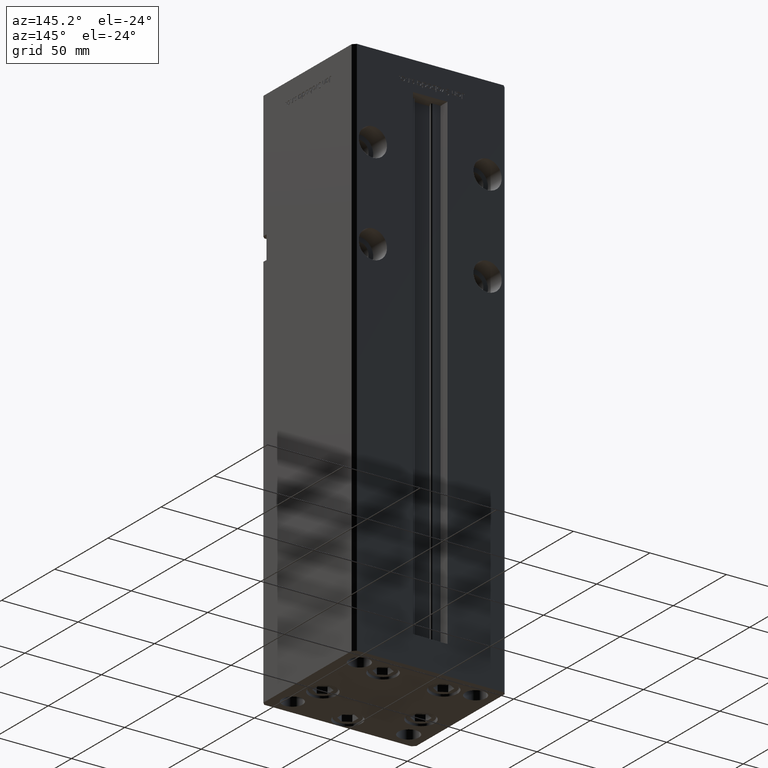
[diagram: clean part render]
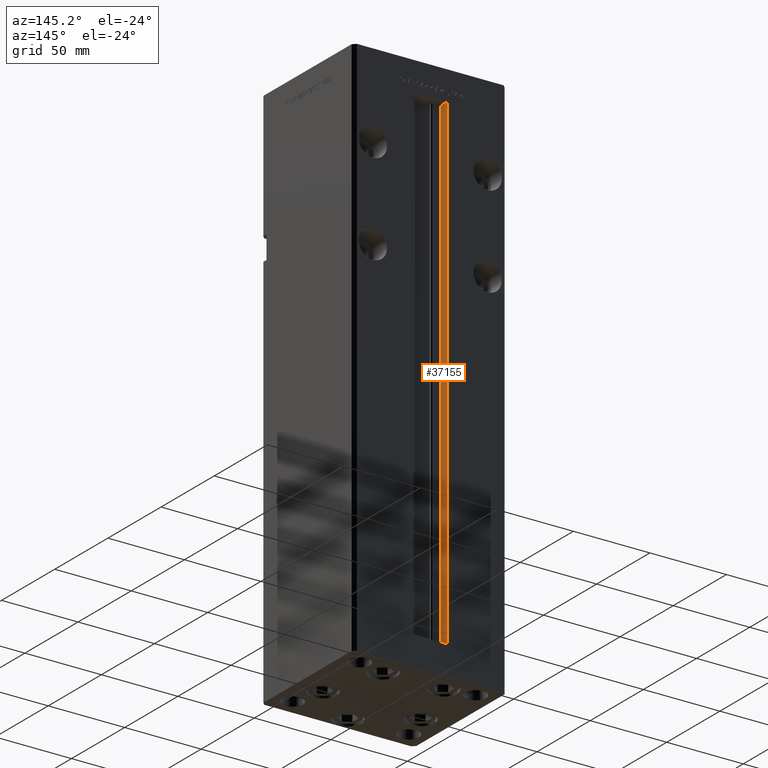
[diagram: same view with one face highlighted and labeled with its STEP entity id]
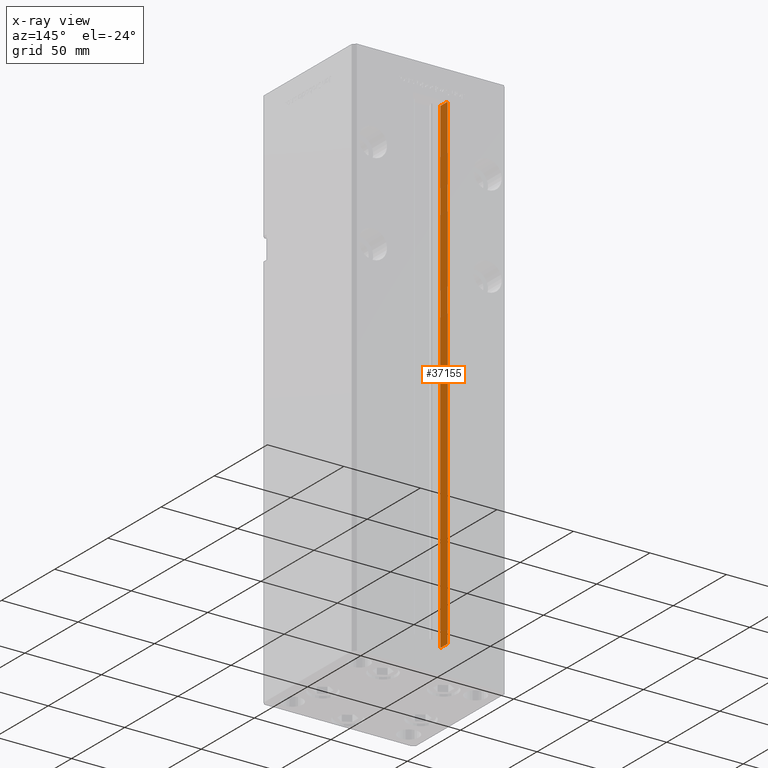
[diagram: x-ray of the same camera — body ghosted, the highlighted face saturated]
A machine part, auxiliary view. The second image highlights one B-rep face of the part: STEP entity #37155.
The next image is the same camera in x-ray: the body ghosted, the highlighted face saturated — about 0% of this face is hidden behind the body in this view.
In plain terms, the highlighted planar face has unit normal (-1, 0, 0).
Its self-contained STEP definition (entity closure, byte-faithful):
#3184 = LINE ( 'NONE', #24919, #37224 ) ;
#3765 = CARTESIAN_POINT ( 'NONE',  ( -11.24999999999999645, 37.00000000000000000, 0.000000000000000000 ) ) ;
#4801 = DIRECTION ( 'NONE',  ( 0.000000000000000000, 0.000000000000000000, 1.000000000000000000 ) ) ;
#7016 = DIRECTION ( 'NONE',  ( -0.000000000000000000, -1.000000000000000000, -0.000000000000000000 ) ) ;
#7573 = CARTESIAN_POINT ( 'NONE',  ( -11.24999999999999645, 37.00000000000000000, 0.000000000000000000 ) ) ;
#7627 = VECTOR ( 'NONE', #7016, 1000.000000000000000 ) ;
#12062 = ORIENTED_EDGE ( 'NONE', *, *, #17508, .F. ) ;
#12911 = EDGE_CURVE ( 'NONE', #43835, #14475, #40292, .T. ) ;
#13181 = DIRECTION ( 'NONE',  ( -0.000000000000000000, -0.000000000000000000, 1.000000000000000000 ) ) ;
#13368 = DIRECTION ( 'NONE',  ( -0.000000000000000000, -0.000000000000000000, 1.000000000000000000 ) ) ;
#14475 = VERTEX_POINT ( 'NONE', #15111 ) ;
#15111 = CARTESIAN_POINT ( 'NONE',  ( -11.24999999999999645, 43.50000000000000000, 318.5000000000000000 ) ) ;
#17508 = EDGE_CURVE ( 'NONE', #35921, #43835, #20695, .T. ) ;
#19270 = CARTESIAN_POINT ( 'NONE',  ( -11.24999999999999645, 43.50000000000000000, 0.000000000000000000 ) ) ;
#19587 = EDGE_LOOP ( 'NONE', ( #12062, #51738, #22259, #50091 ) ) ;
#20695 = LINE ( 'NONE', #49990, #49982 ) ;
#22259 = ORIENTED_EDGE ( 'NONE', *, *, #38564, .T. ) ;
#24919 = CARTESIAN_POINT ( 'NONE',  ( -11.24999999999999645, 43.50000000000000000, 0.000000000000000000 ) ) ;
#25464 = PLANE ( 'NONE',  #36468 ) ;
#27412 = DIRECTION ( 'NONE',  ( 0.000000000000000000, 1.000000000000000000, 0.000000000000000000 ) ) ;
#27447 = CARTESIAN_POINT ( 'NONE',  ( -11.24999999999999645, 37.00000000000000000, 0.000000000000000000 ) ) ;
#30395 = VERTEX_POINT ( 'NONE', #19270 ) ;
#31724 = LINE ( 'NONE', #3765, #7627 ) ;
#34408 = VECTOR ( 'NONE', #27412, 1000.000000000000000 ) ;
#35921 = VERTEX_POINT ( 'NONE', #27447 ) ;
#36468 = AXIS2_PLACEMENT_3D ( 'NONE', #7573, #44369, #4801 ) ;
#37155 = ADVANCED_FACE ( 'NONE', ( #45632 ), #25464, .F. ) ;
#37224 = VECTOR ( 'NONE', #13368, 1000.000000000000000 ) ;
#38564 = EDGE_CURVE ( 'NONE', #30395, #14475, #3184, .T. ) ;
#40292 = LINE ( 'NONE', #43811, #34408 ) ;
#43811 = CARTESIAN_POINT ( 'NONE',  ( -11.24999999999999645, 0.000000000000000000, 318.5000000000000000 ) ) ;
#43835 = VERTEX_POINT ( 'NONE', #50140 ) ;
#44369 = DIRECTION ( 'NONE',  ( -1.000000000000000000, 0.000000000000000000, 0.000000000000000000 ) ) ;
#45632 = FACE_OUTER_BOUND ( 'NONE', #19587, .T. ) ;
#49982 = VECTOR ( 'NONE', #13181, 1000.000000000000000 ) ;
#49990 = CARTESIAN_POINT ( 'NONE',  ( -11.24999999999999645, 37.00000000000000000, 0.000000000000000000 ) ) ;
#50091 = ORIENTED_EDGE ( 'NONE', *, *, #12911, .F. ) ;
#50140 = CARTESIAN_POINT ( 'NONE',  ( -11.24999999999999645, 37.00000000000000000, 318.5000000000000000 ) ) ;
#51738 = ORIENTED_EDGE ( 'NONE', *, *, #52872, .F. ) ;
#52872 = EDGE_CURVE ( 'NONE', #30395, #35921, #31724, .T. ) ;